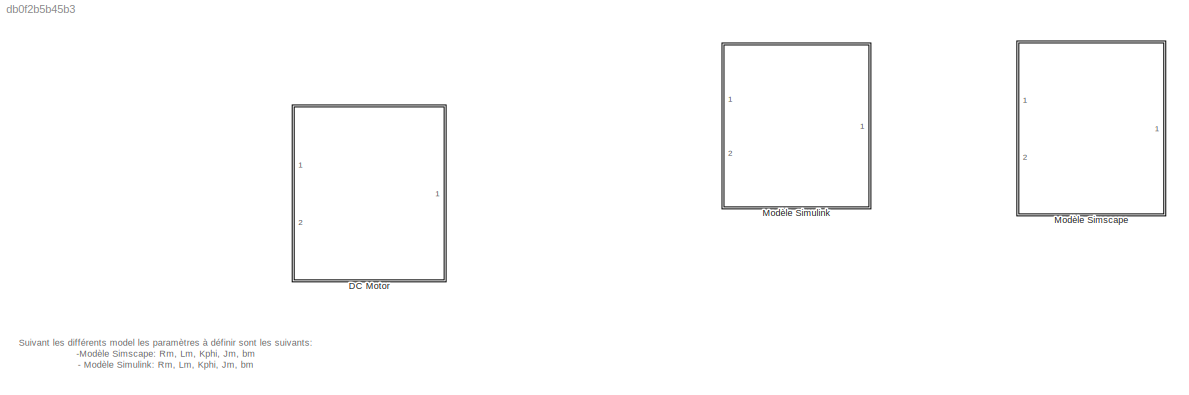
MODEL slx_db0f2b5b45b3
KIND library
CONFIG AbsTol = auto
CONFIG FixedStep = auto
CONFIG MaxStep = auto
CONFIG MinStep = auto
CONFIG RelTol = 1e-3
CONFIG SampleTimeConstraint = Unconstrained
CONFIG Solver = ode45
CONFIG SolverMode = Auto
CONFIG SolverName = ode45
CONFIG StartTime = 0.0
CONFIG StopTime = 10.0
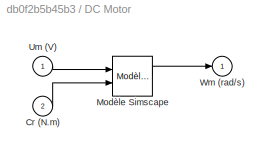
BLOCK [SubSystem] DC Motor
  BlockChoice = Modèle Simscape
  MemberBlocks = Modèle Simscape,Modèle Simulink
  Ports = [2, 1]
  RequestExecContextInheritance = off
  TemplateBlock = self
BLOCK [Inport] DC Motor/Cr (N.m)
  IconDisplay = Port number
  Port = 2
BLOCK [Reference] DC Motor/Modèle Simscape  REF=SingleMotor_V_to_rads/Modèle Simscape
  Jm_lib = Jm
  Kphi_lib = Kphi
  Lm_lib = Lm
  Ports = [2, 1]
  Rm_lib = Rm
  SourceBlock = SingleMotor_V_to_rads/Modèle Simscape
  bm_lib = bm
BLOCK [Inport] DC Motor/Um (V)
  IconDisplay = Port number
BLOCK [Outport] DC Motor/Wm (rad//s)
  IconDisplay = Port number
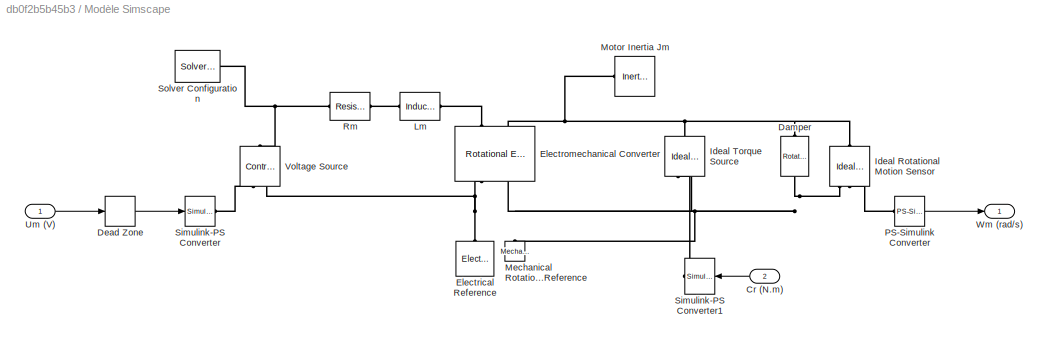
BLOCK [SubSystem] Modèle Simscape
  Ports = [2, 1]
  RequestExecContextInheritance = off
BLOCK [Inport] Modèle Simscape/Cr (N.m)
  IconDisplay = Port number
  Port = 2
BLOCK [Reference] Modèle Simscape/Damper  REF=fl_lib/Mechanical/Rotational Elements/Rotational Damper
  ClassName = damper_rot
  ComponentPath = foundation.mechanical.rotational.damper
  ComponentVariantNames = damper
  ComponentVariants = foundation.mechanical.rotational.damper
  D = bm_lib
  D_unit = N*m/(rad/s)
  LogSimulationData = off
  Ports = [0, 0, 0, 0, 0, 1, 1]
  SchemaVersion = 1
  SourceBlock = fl_lib/Mechanical/Rotational Elements/Rotational Damper
  SourceFile = foundation.mechanical.rotational.damper
  SourceType = Rotational Damper
  t = 0
  t_priority = High
  t_specify = off
  t_unit = N*m
  w = 0
  w_priority = High
  w_specify = off
  w_unit = rad/s
BLOCK [DeadZone] Modèle Simscape/Dead Zone
  LowerValue = -0.22*Ubus
  UpperValue = 0.22*Ubus
BLOCK [Reference] Modèle Simscape/Electrical Reference  REF=fl_lib/Electrical/Electrical Elements/Electrical Reference
  ClassName = reference_electrical
  ComponentPath = foundation.electrical.elements.reference
  ComponentVariantNames = reference
  ComponentVariants = foundation.electrical.elements.reference
  LogSimulationData = off
  Ports = [0, 0, 0, 0, 0, 1]
  SchemaVersion = 1
  SourceBlock = fl_lib/Electrical/Electrical Elements/Electrical Reference
  SourceFile = foundation.electrical.elements.reference
  SourceType = Electrical Reference
BLOCK [Reference] Modèle Simscape/Electromechanical Converter  REF=fl_lib/Electrical/Electrical Elements/Rotational
Electromechanical
Converter
  ClassName = rotational_converter
  ComponentPath = foundation.electrical.elements.rotational_converter
  ComponentVariantNames = rotational_converter
  ComponentVariants = foundation.electrical.elements.rotational_converter
  K = Kphi_lib
  K_unit = V/(rad/s)
  LogSimulationData = off
  Ports = [0, 0, 0, 0, 0, 2, 2]
  SchemaVersion = 1
  SourceBlock = fl_lib/Electrical/Electrical Elements/Rotational\nElectromechanical\nConverter
  SourceFile = foundation.electrical.elements.rotational_converter
  SourceType = Rotational\nElectromechanical\nConverter
  i = 0
  i_priority = High
  i_specify = off
  i_unit = A
  t = 0
  t_priority = High
  t_specify = off
  t_unit = N*m
  v = 0
  v_priority = High
  v_specify = off
  v_unit = V
  w = 0
  w_priority = High
  w_specify = off
  w_unit = rad/s
BLOCK [Reference] Modèle Simscape/Ideal Rotational Motion Sensor  REF=fl_lib/Mechanical/Mechanical Sensors/Ideal Rotational
Motion Sensor
  ClassName = sensor_rot_motion
  ComponentPath = foundation.mechanical.sensors.angular_velocity
  ComponentVariantNames = angular_velocity
  ComponentVariants = foundation.mechanical.sensors.angular_velocity
  LogSimulationData = off
  Ports = [0, 0, 0, 0, 0, 1, 3]
  SchemaVersion = 1
  SourceBlock = fl_lib/Mechanical/Mechanical Sensors/Ideal Rotational\nMotion Sensor
  SourceFile = foundation.mechanical.sensors.angular_velocity
  SourceType = Ideal Rotational\nMotion Sensor
  offset = 0
  offset_unit = rad
BLOCK [Reference] Modèle Simscape/Ideal Torque Source  REF=fl_lib/Mechanical/Mechanical Sources/Ideal Torque Source
  ClassName = torque
  ComponentPath = foundation.mechanical.sources.torque
  ComponentVariantNames = torque
  ComponentVariants = foundation.mechanical.sources.torque
  LogSimulationData = off
  Ports = [0, 0, 0, 0, 0, 1, 2]
  SchemaVersion = 1
  SourceBlock = fl_lib/Mechanical/Mechanical Sources/Ideal Torque Source
  SourceFile = foundation.mechanical.sources.torque
  SourceType = Ideal Torque Source
BLOCK [Reference] Modèle Simscape/Lm  REF=fl_lib/Electrical/Electrical Elements/Inductor
  ClassName = inductor
  ComponentPath = foundation.electrical.elements.inductor
  ComponentVariantNames = inductor
  ComponentVariants = foundation.electrical.elements.inductor
  LogSimulationData = off
  Ports = [0, 0, 0, 0, 0, 1, 1]
  SchemaVersion = 1
  SourceBlock = fl_lib/Electrical/Electrical Elements/Inductor
  SourceFile = foundation.electrical.elements.inductor
  SourceType = Inductor
  g = 1e-09
  g_unit = 1/Ohm
  i = 0
  i_L = 0
  i_L_priority = High
  i_L_specify = on
  i_L_unit = A
  i_priority = High
  i_specify = off
  i_unit = A
  l = Lm_lib
  l_unit = H
  r = 0
  r_unit = Ohm
  v = 0
  v_priority = High
  v_specify = off
  v_unit = V
BLOCK [Reference] Modèle Simscape/Mechanical Rotational Reference  REF=fl_lib/Mechanical/Rotational Elements/Mechanical
Rotational Reference
  ClassName = reference_rot
  ComponentPath = foundation.mechanical.rotational.reference
  ComponentVariantNames = reference
  ComponentVariants = foundation.mechanical.rotational.reference
  LogSimulationData = off
  Ports = [0, 0, 0, 0, 0, 1]
  SchemaVersion = 1
  SourceBlock = fl_lib/Mechanical/Rotational Elements/Mechanical\nRotational Reference
  SourceFile = foundation.mechanical.rotational.reference
  SourceType = Mechanical\nRotational Reference
BLOCK [Reference] Modèle Simscape/Motor Inertia Jm  REF=fl_lib/Mechanical/Rotational Elements/Inertia
  ClassName = inertia
  ComponentPath = foundation.mechanical.rotational.inertia
  ComponentVariantNames = inertia
  ComponentVariants = foundation.mechanical.rotational.inertia
  LogSimulationData = off
  Ports = [0, 0, 0, 0, 0, 1]
  SchemaVersion = 1
  SourceBlock = fl_lib/Mechanical/Rotational Elements/Inertia
  SourceFile = foundation.mechanical.rotational.inertia
  SourceType = Inertia
  inertia = Jm_lib
  inertia_unit = kg*m^2
  t = 0
  t_priority = High
  t_specify = off
  t_unit = N*m
  w = 0
  w_priority = High
  w_specify = on
  w_unit = rad/s
BLOCK [Reference] Modèle Simscape/PS-Simulink Converter  REF=nesl_utility/PS-Simulink
Converter
  AffineConversion = off
  Frequencies = []
  LeftPortType = input
  PhysicalDomain = network_engine_domain
  Ports = [0, 1, 0, 0, 0, 1]
  PseudoPeriodic = off
  RightPortType = output
  SourceBlock = nesl_utility/PS-Simulink\nConverter
  SourceType = PS-Simulink\nConverter
  SubClassName = ps_output
  Unit = rad/s
BLOCK [Reference] Modèle Simscape/Rm  REF=fl_lib/Electrical/Electrical Elements/Resistor
  ClassName = resistor
  ComponentPath = foundation.electrical.elements.resistor
  ComponentVariantNames = resistor
  ComponentVariants = foundation.electrical.elements.resistor
  LogSimulationData = off
  Ports = [0, 0, 0, 0, 0, 1, 1]
  R = Rm_lib
  R_unit = Ohm
  SchemaVersion = 1
  SourceBlock = fl_lib/Electrical/Electrical Elements/Resistor
  SourceFile = foundation.electrical.elements.resistor
  SourceType = Resistor
  Tag = Factory Generic
  i = 0
  i_priority = High
  i_specify = off
  i_unit = A
  v = 0
  v_priority = High
  v_specify = off
  v_unit = V
BLOCK [Reference] Modèle Simscape/Simulink-PS Converter  REF=nesl_utility/Simulink-PS
Converter
  AffineConversion = off
  Frequencies = []
  InputFilterTimeConstant = .001
  InputFiltering = off
  LeftPortType = input
  NoiseDistribution = none
  NoiseParameters = []
  PhysicalDomain = network_engine_domain
  Ports = [1, 0, 0, 0, 0, 0, 1]
  PseudoPeriodic = off
  RightPortType = output
  SimscapeFilterOrder = 1
  SourceBlock = nesl_utility/Simulink-PS\nConverter
  SourceType = Simulink-PS\nConverter
  SubClassName = ps_input
  UdotUserProvided = 0
  Unit = V
BLOCK [Reference] Modèle Simscape/Simulink-PS Converter1  REF=nesl_utility/Simulink-PS
Converter
  AffineConversion = off
  Frequencies = []
  InputFilterTimeConstant = 0.001
  InputFiltering = off
  LeftPortType = input
  NoiseDistribution = none
  NoiseParameters = []
  PhysicalDomain = network_engine_domain
  Ports = [1, 0, 0, 0, 0, 0, 1]
  PseudoPeriodic = off
  RightPortType = output
  SimscapeFilterOrder = 2
  SourceBlock = nesl_utility/Simulink-PS\nConverter
  SourceType = Simulink-PS\nConverter
  SubClassName = ps_input
  UdotUserProvided = 1
  Unit = N*m
BLOCK [Reference] Modèle Simscape/Solver Configuration  REF=nesl_utility/Solver
Configuration
  AbsTol = 1e-06
  Accelerate = off
  AutomaticFiltering = on
  DelaysMemoryBudget = 1024
  DoDC = off
  DoFixedCost = off
  EnableSwitchedLinearOptims = on
  FilteringTimeConstant = 0.001
  FrequencyDomain = off
  Harmonics = []
  LeftPortType = input
  LinearAlgebra = Sparse
  LocalSolverChoice = NE_BACKWARD_EULER_ADVANCER
  LocalSolverSampleTime = .001
  MaxModeIter = 2
  MaxNonlinIter = 3
  MinStep = 1e-09
  NumHomotopyIterations = 100
  PhysicalDomain = network_engine_domain
  Ports = [0, 0, 0, 0, 0, 0, 1]
  Profile = off
  RelTol = 0.001
  ResidualTolerance = 1e-9
  RevertToSquareIcSolve = off
  RightPortType = generic
  SimulateNoise = off
  SourceBlock = nesl_utility/Solver\nConfiguration
  SourceType = Solver\nConfiguration
  SubClassName = solver
  ToWorkspace = off
  Tones = []
  UseCCode = off
  UseLocalSampling = off
  UseLocalSolver = off
BLOCK [Inport] Modèle Simscape/Um (V)
  IconDisplay = Port number
BLOCK [Reference] Modèle Simscape/Voltage Source  REF=fl_lib/Electrical/Electrical Sources/Controlled Voltage
Source
  ClassName = controlled_voltage_source
  ComponentPath = foundation.electrical.sources.controlled_voltage
  ComponentVariantNames = controlled_voltage
  ComponentVariants = foundation.electrical.sources.controlled_voltage
  LogSimulationData = off
  Ports = [0, 0, 0, 0, 0, 1, 2]
  SchemaVersion = 1
  SourceBlock = fl_lib/Electrical/Electrical Sources/Controlled Voltage\nSource
  SourceFile = foundation.electrical.sources.controlled_voltage
  SourceType = Controlled Voltage\nSource
BLOCK [Outport] Modèle Simscape/Wm (rad//s)
  IconDisplay = Port number
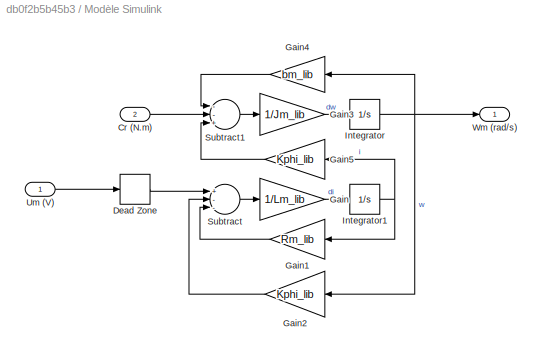
BLOCK [SubSystem] Modèle Simulink
  Ports = [2, 1]
  RequestExecContextInheritance = off
BLOCK [Inport] Modèle Simulink/Cr (N.m)
  IconDisplay = Port number
  Port = 2
BLOCK [DeadZone] Modèle Simulink/Dead Zone
  LowerValue = -0.22*Ubus
  UpperValue = 0.22*Ubus
BLOCK [Gain] Modèle Simulink/Gain
  Gain = 1/Lm_lib
  OutDataTypeStr = Inherit: Inherit via internal rule
  ParamDataTypeStr = Inherit: Inherit via internal rule
  SaturateOnIntegerOverflow = off
BLOCK [Gain] Modèle Simulink/Gain1
  Gain = Rm_lib
  OutDataTypeStr = Inherit: Inherit via internal rule
  ParamDataTypeStr = Inherit: Inherit via internal rule
  SaturateOnIntegerOverflow = off
BLOCK [Gain] Modèle Simulink/Gain2
  Gain = Kphi_lib
  OutDataTypeStr = Inherit: Inherit via internal rule
  ParamDataTypeStr = Inherit: Inherit via internal rule
  SaturateOnIntegerOverflow = off
BLOCK [Gain] Modèle Simulink/Gain3
  Gain = 1/Jm_lib
  OutDataTypeStr = Inherit: Inherit via internal rule
  ParamDataTypeStr = Inherit: Inherit via internal rule
  SaturateOnIntegerOverflow = off
BLOCK [Gain] Modèle Simulink/Gain4
  Gain = bm_lib
  OutDataTypeStr = Inherit: Inherit via internal rule
  ParamDataTypeStr = Inherit: Inherit via internal rule
  SaturateOnIntegerOverflow = off
BLOCK [Gain] Modèle Simulink/Gain5
  Gain = Kphi_lib
  OutDataTypeStr = Inherit: Inherit via internal rule
  ParamDataTypeStr = Inherit: Inherit via internal rule
  SaturateOnIntegerOverflow = off
BLOCK [Integrator] Modèle Simulink/Integrator
  Ports = [1, 1]
BLOCK [Integrator] Modèle Simulink/Integrator1
  Ports = [1, 1]
BLOCK [Sum] Modèle Simulink/Subtract
  InputSameDT = off
  Inputs = +--
  OutDataTypeStr = Inherit: Inherit via internal rule
  Ports = [3, 1]
  SaturateOnIntegerOverflow = off
BLOCK [Sum] Modèle Simulink/Subtract1
  InputSameDT = off
  Inputs = --+
  OutDataTypeStr = Inherit: Inherit via internal rule
  Ports = [3, 1]
  SaturateOnIntegerOverflow = off
BLOCK [Inport] Modèle Simulink/Um (V)
  IconDisplay = Port number
BLOCK [Outport] Modèle Simulink/Wm (rad//s)
  IconDisplay = Port number
ANNOTATION (root): Suivant les différents model les paramètres à définir sont les suivants: -Modèle Simscape: Rm, Lm, Kphi, Jm, bm - Modèle Simulink: Rm, Lm, Kphi, Jm, bm
LINE DC Motor/Cr (N.m):1 -> DC Motor/Modèle Simscape:2
LINE DC Motor/Modèle Simscape:1 -> DC Motor/Wm (rad//s):1
LINE DC Motor/Um (V):1 -> DC Motor/Modèle Simscape:1
LINE Modèle Simscape/Cr (N.m):1 -> Modèle Simscape/Simulink-PS Converter1:1
LINE Modèle Simscape/Dead Zone:1 -> Modèle Simscape/Simulink-PS Converter:1
LINE Modèle Simscape/PS-Simulink Converter:1 -> Modèle Simscape/Wm (rad//s):1
LINE Modèle Simscape/Um (V):1 -> Modèle Simscape/Dead Zone:1
LINE Modèle Simulink/Cr (N.m):1 -> Modèle Simulink/Subtract1:2
LINE Modèle Simulink/Dead Zone:1 -> Modèle Simulink/Subtract:1
LINE Modèle Simulink/Gain1:1 -> Modèle Simulink/Subtract:3
LINE Modèle Simulink/Gain2:1 -> Modèle Simulink/Subtract:2
LINE Modèle Simulink/Gain3:1 -> Modèle Simulink/Integrator:1
LINE Modèle Simulink/Gain4:1 -> Modèle Simulink/Subtract1:1
LINE Modèle Simulink/Gain5:1 -> Modèle Simulink/Subtract1:3
LINE Modèle Simulink/Gain:1 -> Modèle Simulink/Integrator1:1
NET Modèle Simulink/Integrator1:1 -> Modèle Simulink/Gain1:1, Modèle Simulink/Gain5:1
NET Modèle Simulink/Integrator:1 -> Modèle Simulink/Gain2:1, Modèle Simulink/Gain4:1, Modèle Simulink/Wm (rad//s):1
LINE Modèle Simulink/Subtract1:1 -> Modèle Simulink/Gain3:1
LINE Modèle Simulink/Subtract:1 -> Modèle Simulink/Gain:1
LINE Modèle Simulink/Um (V):1 -> Modèle Simulink/Dead Zone:1
PNET net1: Modèle Simscape/Damper:LConn1 -- Modèle Simscape/Electromechanical Converter:LConn2 -- Modèle Simscape/Ideal Rotational Motion Sensor:LConn1 -- Modèle Simscape/Ideal Torque Source:LConn1 -- Modèle Simscape/Motor Inertia Jm:LConn1
PNET net2: Modèle Simscape/Damper:RConn1 -- Modèle Simscape/Electromechanical Converter:RConn2 -- Modèle Simscape/Ideal Rotational Motion Sensor:RConn1 -- Modèle Simscape/Ideal Torque Source:RConn2 -- Modèle Simscape/Mechanical Rotational Reference:LConn1
PNET net3: Modèle Simscape/Electrical Reference:LConn1 -- Modèle Simscape/Electromechanical Converter:RConn1 -- Modèle Simscape/Voltage Source:RConn2
PLINE Modèle Simscape/Electromechanical Converter:LConn1 -- Modèle Simscape/Lm:RConn1
PLINE Modèle Simscape/Ideal Rotational Motion Sensor:RConn2 -- Modèle Simscape/PS-Simulink Converter:LConn1
PLINE Modèle Simscape/Ideal Torque Source:RConn1 -- Modèle Simscape/Simulink-PS Converter1:RConn1
PLINE Modèle Simscape/Lm:LConn1 -- Modèle Simscape/Rm:RConn1
PNET net4: Modèle Simscape/Rm:LConn1 -- Modèle Simscape/Solver Configuration:RConn1 -- Modèle Simscape/Voltage Source:LConn1
PLINE Modèle Simscape/Simulink-PS Converter:RConn1 -- Modèle Simscape/Voltage Source:RConn1
note: NET lines group one-source signal fan-out (src -> all destinations, sorted); 1:1 wires keep LINE; PNET lines group multi-terminal physical nets as a canonical sorted terminal list (undirected conserving connections); 2-terminal nets keep the pairwise PLINE form
